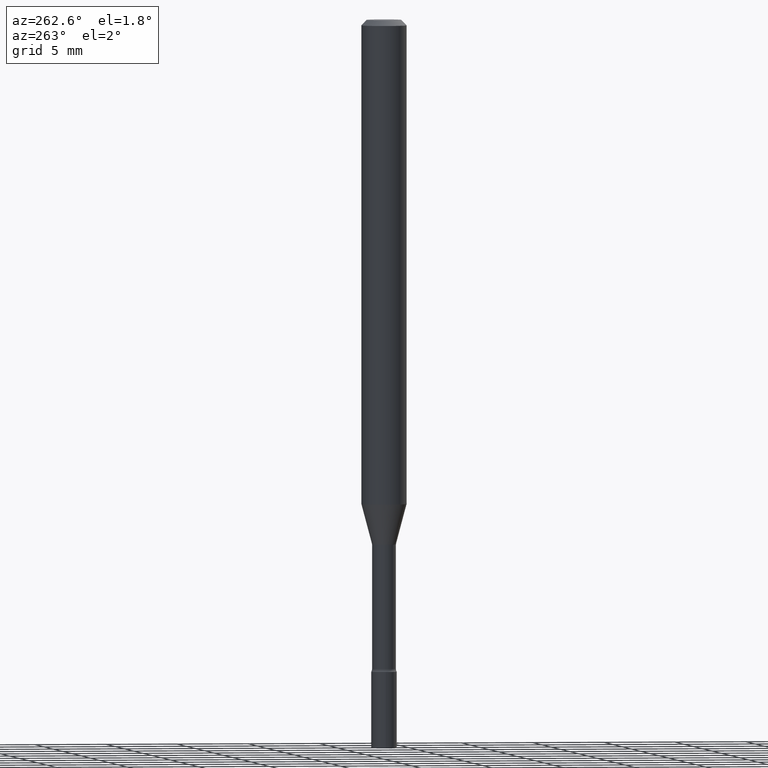
[diagram: clean part render]
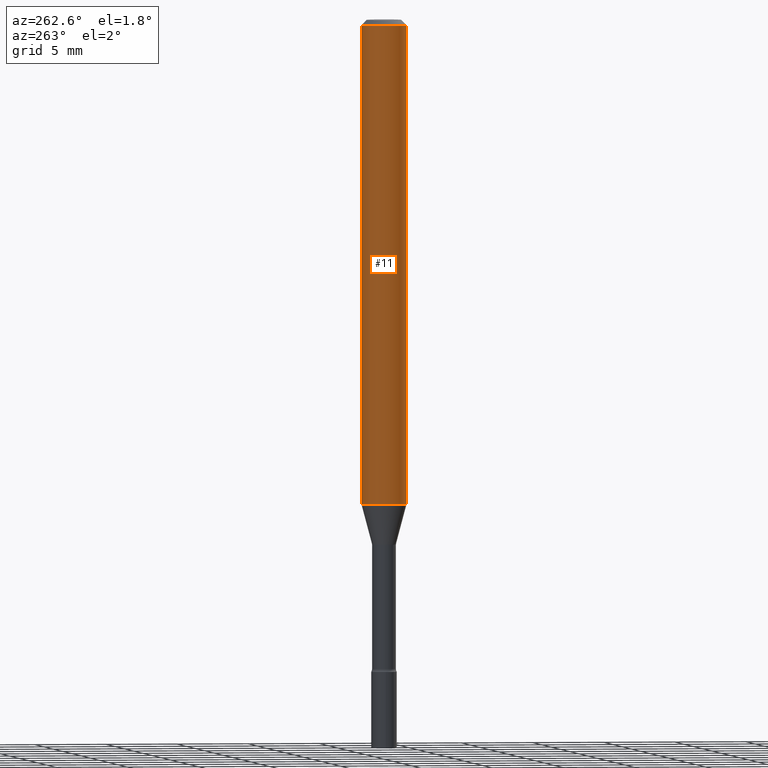
[diagram: same view with one face highlighted and labeled with its STEP entity id]
A machine part, auxiliary view. The second image highlights one B-rep face of the part: STEP entity #11.
In plain terms, the highlighted cylindrical surface (edge-blend (fillet) strip) has radius 1.5875 mm, axis along (-0, 0, 1).
Its self-contained STEP definition (entity closure, byte-faithful):
#11 = ADVANCED_FACE ( 'NONE', ( #78 ), #240, .T. ) ;
#23 = EDGE_CURVE ( 'NONE', #248, #106, #420, .T. ) ;
#35 = DIRECTION ( 'NONE',  ( -6.982962677686265922E-15, -1.000000000000000000, 4.370956789862821150E-15 ) ) ;
#77 = ORIENTED_EDGE ( 'NONE', *, *, #23, .F. ) ;
#78 = FACE_OUTER_BOUND ( 'NONE', #394, .T. ) ;
#81 = LINE ( 'NONE', #139, #335 ) ;
#87 = ORIENTED_EDGE ( 'NONE', *, *, #380, .T. ) ;
#92 = VERTEX_POINT ( 'NONE', #294 ) ;
#99 = CARTESIAN_POINT ( 'NONE',  ( 0.000000000000000000, 0.000000000000000000, 0.000000000000000000 ) ) ;
#105 = CARTESIAN_POINT ( 'NONE',  ( -4.364351673553912750E-16, -0.06250000000000005551, -0.01499999999999981209 ) ) ;
#106 = VERTEX_POINT ( 'NONE', #105 ) ;
#119 = DIRECTION ( 'NONE',  ( -2.445497550844091636E-29, 3.491440174855477683E-15, 1.000000000000000000 ) ) ;
#139 = CARTESIAN_POINT ( 'NONE',  ( 4.440892098500625669E-16, 0.06250000000000000000, -2.182150109284673306E-16 ) ) ;
#151 = ORIENTED_EDGE ( 'NONE', *, *, #313, .F. ) ;
#155 = ORIENTED_EDGE ( 'NONE', *, *, #397, .T. ) ;
#174 = AXIS2_PLACEMENT_3D ( 'NONE', #191, #345, #35 ) ;
#179 = VECTOR ( 'NONE', #119, 39.37007874015748143 ) ;
#190 = DIRECTION ( 'NONE',  ( -6.982962677686265922E-15, -1.000000000000000000, 3.491440174855477289E-15 ) ) ;
#191 = CARTESIAN_POINT ( 'NONE',  ( 3.251365528373244956E-29, -4.641978980917113845E-15, -1.329531296095961546 ) ) ;
#221 = DIRECTION ( 'NONE',  ( -2.445497550844091636E-29, 3.491440174855477289E-15, 1.000000000000000000 ) ) ;
#226 = CIRCLE ( 'NONE', #174, 0.06250000000000000000 ) ;
#240 = CYLINDRICAL_SURFACE ( 'NONE', #332, 0.06250000000000000000 ) ;
#248 = VERTEX_POINT ( 'NONE', #279 ) ;
#251 = AXIS2_PLACEMENT_3D ( 'NONE', #426, #221, #429 ) ;
#279 = CARTESIAN_POINT ( 'NONE',  ( 4.440892098500952553E-16, 0.06249999999999993755, -0.01500000000000024751 ) ) ;
#294 = CARTESIAN_POINT ( 'NONE',  ( 4.440892098500948609E-16, 0.06249999999999532319, -1.329531296095961768 ) ) ;
#313 = EDGE_CURVE ( 'NONE', #92, #248, #81, .T. ) ;
#320 = LINE ( 'NONE', #470, #179 ) ;
#332 = AXIS2_PLACEMENT_3D ( 'NONE', #99, #340, #190 ) ;
#335 = VECTOR ( 'NONE', #412, 39.37007874015748143 ) ;
#340 = DIRECTION ( 'NONE',  ( -2.445497550844091636E-29, 3.491440174855477289E-15, 1.000000000000000000 ) ) ;
#345 = DIRECTION ( 'NONE',  ( -2.445497550844091636E-29, 3.491440174855477289E-15, 1.000000000000000000 ) ) ;
#380 = EDGE_CURVE ( 'NONE', #92, #499, #226, .T. ) ;
#394 = EDGE_LOOP ( 'NONE', ( #151, #87, #155, #77 ) ) ;
#397 = EDGE_CURVE ( 'NONE', #499, #106, #320, .T. ) ;
#412 = DIRECTION ( 'NONE',  ( -2.445497550844091636E-29, 3.491440174855477683E-15, 1.000000000000000000 ) ) ;
#420 = CIRCLE ( 'NONE', #251, 0.06250000000000000000 ) ;
#426 = CARTESIAN_POINT ( 'NONE',  ( 3.668246326266144706E-31, -5.237160262283227027E-17, -0.01500000000000003067 ) ) ;
#429 = DIRECTION ( 'NONE',  ( -6.982962677686265922E-15, -1.000000000000000000, 3.483106191921935554E-15 ) ) ;
#470 = CARTESIAN_POINT ( 'NONE',  ( -4.364351673553916201E-16, -0.06250000000000000000, 2.182150109284673306E-16 ) ) ;
#484 = CARTESIAN_POINT ( 'NONE',  ( -4.364351673553592768E-16, -0.06250000000000467681, -1.329531296095961101 ) ) ;
#499 = VERTEX_POINT ( 'NONE', #484 ) ;